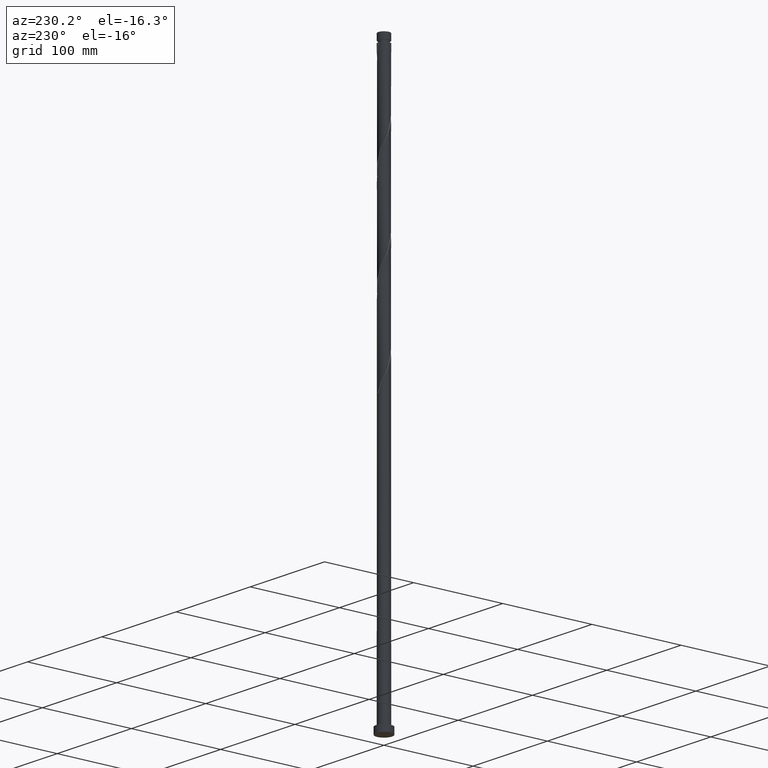
[diagram: clean part render]
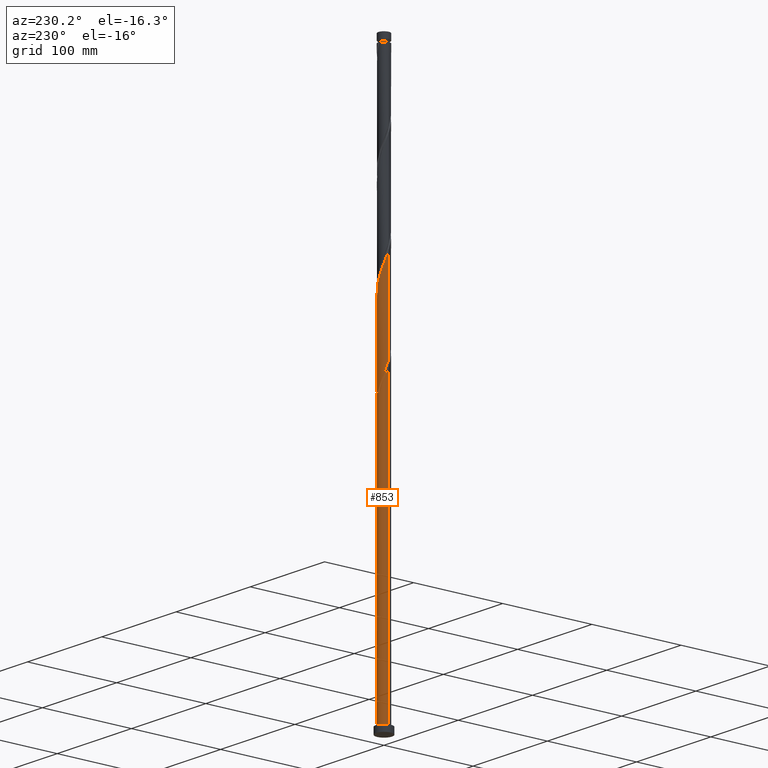
[diagram: same view with one face highlighted and labeled with its STEP entity id]
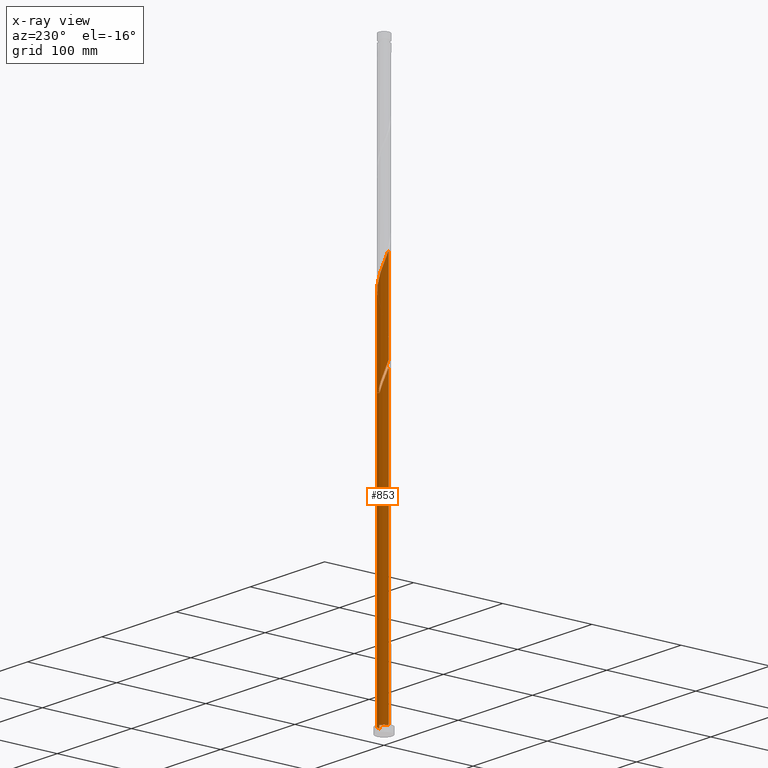
[diagram: x-ray of the same camera — body ghosted, the highlighted face saturated]
A machine part, auxiliary view. The second image highlights one B-rep face of the part: STEP entity #853.
The next image is the same camera in x-ray: the body ghosted, the highlighted face saturated — about 0% of this face is hidden behind the body in this view.
In plain terms, the highlighted cylindrical surface (edge-blend (fillet) strip) has radius 6.25 mm, axis along (-0, -0, -1).
Its self-contained STEP definition (entity closure, byte-faithful):
#15 = CARTESIAN_POINT ( 'NONE',  ( 4.138338151638126128, 4.683658542496076826, 395.3214129543825948 ) ) ;
#21 = CARTESIAN_POINT ( 'NONE',  ( 0.000000000000000000, 0.000000000000000000, 7.000000000000000000 ) ) ;
#23 = LINE ( 'NONE', #732, #69 ) ;
#56 = CARTESIAN_POINT ( 'NONE',  ( 2.166952786544130038, 5.862321692033692244, 401.4978835426180126 ) ) ;
#63 = DIRECTION ( 'NONE',  ( -0.000000000000000000, -0.000000000000000000, -1.000000000000000000 ) ) ;
#69 = VECTOR ( 'NONE', #1031, 1000.000000000000000 ) ;
#111 = ORIENTED_EDGE ( 'NONE', *, *, #513, .F. ) ;
#130 = CARTESIAN_POINT ( 'NONE',  ( -5.550818018030069467, 2.872441353746451487, 327.3802364837944197 ) ) ;
#155 = ORIENTED_EDGE ( 'NONE', *, *, #1668, .F. ) ;
#164 = CARTESIAN_POINT ( 'NONE',  ( -6.250000000000001776, 7.021209414020131870E-15, 335.3607981996649983 ) ) ;
#181 = CARTESIAN_POINT ( 'NONE',  ( 0.4819863434057365392, 6.258242670773383587, 406.1302364837944765 ) ) ;
#210 = CARTESIAN_POINT ( 'NONE',  ( -4.703723798979375204, 4.156067201626251872, 316.5714129543827084 ) ) ;
#225 = CARTESIAN_POINT ( 'NONE',  ( 0.000000000000000000, 0.000000000000000000, 630.0000000000000000 ) ) ;
#226 = CARTESIAN_POINT ( 'NONE',  ( -6.250000000000010658, -6.334027216052155665E-15, 433.6643806502768825 ) ) ;
#229 = CARTESIAN_POINT ( 'NONE',  ( -4.281841208703491830, 4.552838220654098933, 315.0272953073238682 ) ) ;
#246 = AXIS2_PLACEMENT_3D ( 'NONE', #225, #1399, #394 ) ;
#295 = CARTESIAN_POINT ( 'NONE',  ( -6.250000000000002665, 0.3376248979953905272, 334.4568789676522442 ) ) ;
#344 = CARTESIAN_POINT ( 'NONE',  ( 4.572343029938441994, 4.300185039982787671, 393.7772953073239250 ) ) ;
#345 = CARTESIAN_POINT ( 'NONE',  ( 3.704333273337804933, 5.067132045009369534, 396.8655306014416055 ) ) ;
#347 = AXIS2_PLACEMENT_3D ( 'NONE', #21, #1223, #2064 ) ;
#355 = CARTESIAN_POINT ( 'NONE',  ( -6.231546110836972296, 0.4799302746365645134, 432.3802364837944765 ) ) ;
#359 = EDGE_CURVE ( 'NONE', #1000, #1697, #773, .T. ) ;
#387 = CARTESIAN_POINT ( 'NONE',  ( -3.859958618427608457, 4.949609239681941553, 418.4831776602650280 ) ) ;
#394 = DIRECTION ( 'NONE',  ( -1.000000000000000000, 0.000000000000000000, 0.000000000000000000 ) ) ;
#458 = ORIENTED_EDGE ( 'NONE', *, *, #359, .F. ) ;
#464 = CARTESIAN_POINT ( 'NONE',  ( 6.151240105858516216, 1.249062577133805085, 384.5125894249708836 ) ) ;
#487 = DIRECTION ( 'NONE',  ( -0.000000000000000000, -0.000000000000000000, -1.000000000000000000 ) ) ;
#496 = CIRCLE ( 'NONE', #774, 6.250000000000000000 ) ;
#513 = EDGE_CURVE ( 'NONE', #2056, #1993, #1094, .T. ) ;
#529 = CARTESIAN_POINT ( 'NONE',  ( -5.887436458037868192, 2.176236226627279446, 322.7478835426180126 ) ) ;
#537 = CARTESIAN_POINT ( 'NONE',  ( -2.348023153125547768, 5.792174658311546764, 413.8508247190885072 ) ) ;
#547 = CARTESIAN_POINT ( 'NONE',  ( -2.884747176635378718, 5.574598271482226863, 415.3949423661472906 ) ) ;
#556 = CARTESIAN_POINT ( 'NONE',  ( 5.550818018030080125, 2.872441353746455039, 389.1449423661474043 ) ) ;
#567 = CARTESIAN_POINT ( 'NONE',  ( -2.884747176635378718, 5.574598271482226863, 310.3949423661473475 ) ) ;
#605 = LINE ( 'NONE', #1111, #1694 ) ;
#653 = CARTESIAN_POINT ( 'NONE',  ( -5.984114506671556200, 1.803572446851816613, 330.4684717779120433 ) ) ;
#654 = ORIENTED_EDGE ( 'NONE', *, *, #870, .T. ) ;
#665 = CARTESIAN_POINT ( 'NONE',  ( -2.166952786544121601, 5.862321692033684251, 315.0272953073236977 ) ) ;
#671 = EDGE_CURVE ( 'NONE', #2056, #1867, #496, .T. ) ;
#689 = CARTESIAN_POINT ( 'NONE',  ( -5.045516553015578332, 3.688531240649310039, 423.1155306014416055 ) ) ;
#705 = CARTESIAN_POINT ( 'NONE',  ( -5.387309307051779683, 3.220995279672369094, 319.6596482485003321 ) ) ;
#714 = CARTESIAN_POINT ( 'NONE',  ( -5.887436458037868192, 2.176236226627279446, 427.7478835426178421 ) ) ;
#732 = CARTESIAN_POINT ( 'NONE',  ( 6.250000000000000000, 7.654042494670957606E-16, 630.0000000000000000 ) ) ;
#769 = CARTESIAN_POINT ( 'NONE',  ( 5.284647128575540087, 3.386800390923078830, 390.6890600132062445 ) ) ;
#773 =( BOUNDED_CURVE ( )  B_SPLINE_CURVE ( 2, ( #891, #1849, #2184, #464, #2014, #1483, #556, #769, #1446, #344, #15, #345, #1216, #1558, #56, #1913, #1734, #181, #1525, #1901, #1185, #1726, #537, #547, #1549, #387, #1051, #1358, #689, #849, #1042, #714, #1868, #1197, #355, #1060, #226 ),
 .UNSPECIFIED., .F., .T. ) 
 B_SPLINE_CURVE_WITH_KNOTS ( ( 3, 2, 2, 2, 2, 2, 2, 2, 2, 2, 2, 2, 2, 2, 2, 2, 2, 2, 3 ),
 ( 0.1795293573162903555, 0.1838235294117647189, 0.1911764705882352811, 0.1985294117647058432, 0.2058823529411765163, 0.2132352941176470784, 0.2205882352941176405, 0.2279411764705882026, 0.2352941176470588758, 0.2426470588235294379, 0.2500000000000000000, 0.2573529411764705621, 0.2647058823529411242, 0.2720588235294117974, 0.2794117647058823595, 0.2867647058823529216, 0.2941176470588234837, 0.3014705882352941568, 0.3045293573162906053 ),
 .UNSPECIFIED. ) 
 CURVE ( )  GEOMETRIC_REPRESENTATION_ITEM ( )  RATIONAL_B_SPLINE_CURVE ( ( 0.9072066346053186958, 0.9068261157890857849, 0.9090909090909571333, 0.9052128875409882758, 0.9090909090909571333, 0.9052128875409882758, 0.9090909090909571333, 0.9052128875409882758, 0.9090909090909571333, 0.9052128875409882758, 0.9090909090909571333, 0.9052128875409882758, 0.9090909090909571333, 0.9052128875409882758, 0.9090909090909571333, 0.9052128875409882758, 0.9090909090909571333, 0.9052128875409882758, 0.9090909090909571333, 0.9052128875409882758, 0.9090909090909571333, 0.9052128875409882758, 0.9090909090909571333, 0.9052128875409882758, 0.9090909090909571333, 0.9052128875409882758, 0.9090909090909571333, 0.9052128875409882758, 0.9090909090909571333, 0.9052128875409882758, 0.9090909090909571333, 0.9052128875409882758, 0.9090909090909571333, 0.9052128875409882758, 0.9090909090909571333, 0.9074776808428595132, 0.9072066346053186958 ) ) 
 REPRESENTATION_ITEM ( '' )  );
#774 = AXIS2_PLACEMENT_3D ( 'NONE', #1272, #1777, #779 ) ;
#779 = DIRECTION ( 'NONE',  ( -1.000000000000000000, 0.000000000000000000, 0.000000000000000000 ) ) ;
#797 = CARTESIAN_POINT ( 'NONE',  ( -4.928495079256983935, 3.843492715452928365, 324.2920011896768528 ) ) ;
#801 = CIRCLE ( 'NONE', #347, 6.250000000000000000 ) ;
#833 = CARTESIAN_POINT ( 'NONE',  ( -2.710176889971708913, 5.661523945598179175, 316.5714129543826516 ) ) ;
#849 = CARTESIAN_POINT ( 'NONE',  ( -5.387309307051779683, 3.220995279672369094, 424.6596482485003889 ) ) ;
#853 = ADVANCED_FACE ( 'NONE', ( #2045 ), #2067, .T. ) ;
#870 = EDGE_CURVE ( 'NONE', #1000, #1131, #23, .T. ) ;
#876 = CARTESIAN_POINT ( 'NONE',  ( -6.037255239842539645, 1.616802142809668830, 324.2920011896768528 ) ) ;
#891 = CARTESIAN_POINT ( 'NONE',  ( 6.250000000000011546, 6.662679571602031845E-15, 381.1643806502768825 ) ) ;
#898 = ORIENTED_EDGE ( 'NONE', *, *, #671, .T. ) ;
#926 = CARTESIAN_POINT ( 'NONE',  ( -6.231546110836972296, 0.4799302746365645134, 327.3802364837944765 ) ) ;
#962 = CARTESIAN_POINT ( 'NONE',  ( -1.623728683116535620, 6.063119438469188438, 313.4831776602650848 ) ) ;
#987 = ORIENTED_EDGE ( 'NONE', *, *, #1322, .F. ) ;
#996 = CARTESIAN_POINT ( 'NONE',  ( -5.816988907484607729, 2.358082316569827697, 328.9243541308532599 ) ) ;
#1000 = VERTEX_POINT ( 'NONE', #1205 ) ;
#1031 = DIRECTION ( 'NONE',  ( -0.000000000000000000, -0.000000000000000000, -1.000000000000000000 ) ) ;
#1042 = CARTESIAN_POINT ( 'NONE',  ( -5.637372882544824826, 2.698615753149824048, 426.2037658955591155 ) ) ;
#1051 = CARTESIAN_POINT ( 'NONE',  ( -4.281841208703491830, 4.552838220654098933, 420.0272953073239250 ) ) ;
#1053 = CARTESIAN_POINT ( 'NONE',  ( -2.348023153125547768, 5.792174658311546764, 308.8508247190885641 ) ) ;
#1060 = CARTESIAN_POINT ( 'NONE',  ( -6.250000000000010658, 0.2403199242980035288, 433.0209748982171050 ) ) ;
#1073 = CARTESIAN_POINT ( 'NONE',  ( -5.637372882544824826, 2.698615753149824048, 321.2037658955591723 ) ) ;
#1094 =( BOUNDED_CURVE ( )  B_SPLINE_CURVE ( 2, ( #1570, #2071, #1053, #567, #1736, #1239, #229, #210, #1925, #705, #1073, #529, #876, #1552, #926, #2143, #1249 ),
 .UNSPECIFIED., .F., .T. ) 
 B_SPLINE_CURVE_WITH_KNOTS ( ( 3, 2, 2, 2, 2, 2, 2, 2, 3 ),
 ( 0.000000000000000000, 0.007352941176470562112, 0.01470588235294112422, 0.02205882352941179736, 0.02941176470588235947, 0.03676470588235292158, 0.04411764705882348370, 0.05147058823529415683, 0.05452935731629061922 ),
 .UNSPECIFIED. ) 
 CURVE ( )  GEOMETRIC_REPRESENTATION_ITEM ( )  RATIONAL_B_SPLINE_CURVE ( ( 0.9090909090909571333, 0.9052128875409882758, 0.9090909090909571333, 0.9052128875409882758, 0.9090909090909571333, 0.9052128875409882758, 0.9090909090909571333, 0.9052128875409882758, 0.9090909090909571333, 0.9052128875409882758, 0.9090909090909571333, 0.9052128875409882758, 0.9090909090909571333, 0.9052128875409882758, 0.9090909090909571333, 0.9074776808428595132, 0.9072066346053189179 ) ) 
 REPRESENTATION_ITEM ( '' )  );
#1111 = CARTESIAN_POINT ( 'NONE',  ( -6.250000000000000000, 0.000000000000000000, 630.0000000000000000 ) ) ;
#1113 = CARTESIAN_POINT ( 'NONE',  ( 6.250000000000000000, 7.654042494670957606E-16, 7.000000000000000000 ) ) ;
#1122 = CARTESIAN_POINT ( 'NONE',  ( -6.250000000000010658, -6.334027216052155665E-15, 328.6643806502768825 ) ) ;
#1124 = CARTESIAN_POINT ( 'NONE',  ( -6.151240105858505558, 1.249062577133805529, 332.0125894249709404 ) ) ;
#1131 = VERTEX_POINT ( 'NONE', #1113 ) ;
#1162 = CARTESIAN_POINT ( 'NONE',  ( 1.243734296383283811, 6.124999999999999112, 305.7625894249708836 ) ) ;
#1173 = CARTESIAN_POINT ( 'NONE',  ( 0.6761694631508501363, 6.240248954859140440, 307.3067070720297806 ) ) ;
#1185 = CARTESIAN_POINT ( 'NONE',  ( -1.243734296383281812, 6.125000000000010658, 410.7625894249709404 ) ) ;
#1197 = CARTESIAN_POINT ( 'NONE',  ( -6.187074021647211985, 1.057368058992059101, 430.8361188367355226 ) ) ;
#1205 = CARTESIAN_POINT ( 'NONE',  ( 6.250000000000011546, 6.662679571602031845E-15, 381.1643806502768825 ) ) ;
#1216 = CARTESIAN_POINT ( 'NONE',  ( 3.207255081654760254, 5.364327995303778351, 398.4096482485002753 ) ) ;
#1223 = DIRECTION ( 'NONE',  ( 0.000000000000000000, 0.000000000000000000, 1.000000000000000000 ) ) ;
#1239 = CARTESIAN_POINT ( 'NONE',  ( -3.859958618427608457, 4.949609239681941553, 313.4831776602651416 ) ) ;
#1249 = CARTESIAN_POINT ( 'NONE',  ( -6.250000000000010658, -6.334027216052155665E-15, 328.6643806502768825 ) ) ;
#1256 = CARTESIAN_POINT ( 'NONE',  ( 1.243734296383283811, 6.124999999999999112, 305.7625894249708836 ) ) ;
#1272 = CARTESIAN_POINT ( 'NONE',  ( 0.000000000000000000, 0.000000000000000000, 305.7625894249709404 ) ) ;
#1305 = CARTESIAN_POINT ( 'NONE',  ( -0.4819863434057327645, 6.258242670773373817, 310.3949423661474043 ) ) ;
#1309 =( BOUNDED_CURVE ( )  B_SPLINE_CURVE ( 2, ( #164, #295, #1814, #1124, #653, #996, #130, #1487, #797, #1803, #2189, #1473, #2005, #833, #665, #962, #1500, #1305, #1667, #1173, #1162 ),
 .UNSPECIFIED., .F., .T. ) 
 B_SPLINE_CURVE_WITH_KNOTS ( ( 3, 2, 2, 2, 2, 2, 2, 2, 2, 2, 3 ),
 ( 0.9295293573162902723, 0.9338235294117647189, 0.9411764705882352811, 0.9485294117647058432, 0.9558823529411765163, 0.9632352941176470784, 0.9705882352941176405, 0.9779411764705882026, 0.9852941176470588758, 0.9926470588235294379, 1.000000000000000000 ),
 .UNSPECIFIED. ) 
 CURVE ( )  GEOMETRIC_REPRESENTATION_ITEM ( )  RATIONAL_B_SPLINE_CURVE ( ( 0.9072066346053119235, 0.9068261157890789015, 0.9090909090909502499, 0.9052128875409815034, 0.9090909090909502499, 0.9052128875409815034, 0.9090909090909502499, 0.9052128875409815034, 0.9090909090909502499, 0.9052128875409815034, 0.9090909090909502499, 0.9052128875409815034, 0.9090909090909502499, 0.9052128875409815034, 0.9090909090909502499, 0.9052128875409815034, 0.9090909090909502499, 0.9052128875409815034, 0.9090909090909502499, 0.9052128875409815034, 0.9090909090909502499 ) ) 
 REPRESENTATION_ITEM ( '' )  );
#1322 = EDGE_CURVE ( 'NONE', #1678, #1867, #1309, .T. ) ;
#1348 = EDGE_LOOP ( 'NONE', ( #458, #654, #2140, #155, #111, #898, #987, #2065 ) ) ;
#1358 = CARTESIAN_POINT ( 'NONE',  ( -4.703723798979375204, 4.156067201626251872, 421.5714129543825948 ) ) ;
#1399 = DIRECTION ( 'NONE',  ( -0.000000000000000000, -0.000000000000000000, -1.000000000000000000 ) ) ;
#1438 = CARTESIAN_POINT ( 'NONE',  ( -6.250000000000001776, 7.021209414020131870E-15, 335.3607981996649983 ) ) ;
#1446 = CARTESIAN_POINT ( 'NONE',  ( 4.928495079256989264, 3.843492715452935027, 392.2331776602650280 ) ) ;
#1473 = CARTESIAN_POINT ( 'NONE',  ( -3.704333273337800492, 5.067132045009359764, 319.6596482485003321 ) ) ;
#1483 = CARTESIAN_POINT ( 'NONE',  ( 5.816988907484617499, 2.358082316569833026, 387.6008247190885072 ) ) ;
#1487 = CARTESIAN_POINT ( 'NONE',  ( -5.284647128575529429, 3.386800390923074389, 325.8361188367356363 ) ) ;
#1500 = CARTESIAN_POINT ( 'NONE',  ( -1.052857513261133970, 6.160681054621281127, 311.9390600132061309 ) ) ;
#1525 = CARTESIAN_POINT ( 'NONE',  ( -0.09709155987255929654, 6.249245812816266898, 407.6743541308532031 ) ) ;
#1549 = CARTESIAN_POINT ( 'NONE',  ( -3.372352897531493365, 5.262103755582086428, 416.9390600132061877 ) ) ;
#1552 = CARTESIAN_POINT ( 'NONE',  ( -6.187074021647211985, 1.057368058992059101, 325.8361188367355794 ) ) ;
#1558 = CARTESIAN_POINT ( 'NONE',  ( 2.710176889971715131, 5.661523945598186280, 399.9537658955591155 ) ) ;
#1560 = EDGE_CURVE ( 'NONE', #1131, #1898, #801, .T. ) ;
#1570 = CARTESIAN_POINT ( 'NONE',  ( -1.243734296383281812, 6.125000000000010658, 305.7625894249708836 ) ) ;
#1630 = LINE ( 'NONE', #1811, #1696 ) ;
#1667 = CARTESIAN_POINT ( 'NONE',  ( 0.09709155987255846387, 6.249245812816258017, 308.8508247190885072 ) ) ;
#1668 = EDGE_CURVE ( 'NONE', #1993, #1898, #605, .T. ) ;
#1678 = VERTEX_POINT ( 'NONE', #1438 ) ;
#1694 = VECTOR ( 'NONE', #63, 1000.000000000000000 ) ;
#1696 = VECTOR ( 'NONE', #487, 1000.000000000000000 ) ;
#1697 = VERTEX_POINT ( 'NONE', #1781 ) ;
#1726 = CARTESIAN_POINT ( 'NONE',  ( -1.811299129615716375, 6.009751045140867554, 412.3067070720297238 ) ) ;
#1734 = CARTESIAN_POINT ( 'NONE',  ( 1.052857513261137301, 6.160681054621292674, 404.5861188367356363 ) ) ;
#1736 = CARTESIAN_POINT ( 'NONE',  ( -3.372352897531493365, 5.262103755582086428, 311.9390600132061877 ) ) ;
#1777 = DIRECTION ( 'NONE',  ( 0.000000000000000000, -0.000000000000000000, -1.000000000000000000 ) ) ;
#1781 = CARTESIAN_POINT ( 'NONE',  ( -6.250000000000010658, -6.334027216052155665E-15, 433.6643806502768825 ) ) ;
#1803 = CARTESIAN_POINT ( 'NONE',  ( -4.572343029938433112, 4.300185039982783231, 322.7478835426179558 ) ) ;
#1811 = CARTESIAN_POINT ( 'NONE',  ( -6.250000000000000000, 0.000000000000000000, 630.0000000000000000 ) ) ;
#1814 = CARTESIAN_POINT ( 'NONE',  ( -6.213629152942616862, 0.6732850434263681905, 333.5567070720297806 ) ) ;
#1844 = CARTESIAN_POINT ( 'NONE',  ( -1.243734296383282034, 6.125000000000010658, 305.7625894249708836 ) ) ;
#1849 = CARTESIAN_POINT ( 'NONE',  ( 6.250000000000013323, 0.3376248979953981322, 382.0682998822895797 ) ) ;
#1867 = VERTEX_POINT ( 'NONE', #1256 ) ;
#1868 = CARTESIAN_POINT ( 'NONE',  ( -6.037255239842539645, 1.616802142809668830, 429.2920011896767960 ) ) ;
#1898 = VERTEX_POINT ( 'NONE', #2129 ) ;
#1901 = CARTESIAN_POINT ( 'NONE',  ( -0.6761694631508505804, 6.240248954859151098, 409.2184717779119296 ) ) ;
#1913 = CARTESIAN_POINT ( 'NONE',  ( 1.623728683116538951, 6.063119438469199984, 403.0420011896767960 ) ) ;
#1925 = CARTESIAN_POINT ( 'NONE',  ( -5.045516553015578332, 3.688531240649310039, 318.1155306014414919 ) ) ;
#1993 = VERTEX_POINT ( 'NONE', #1122 ) ;
#2005 = CARTESIAN_POINT ( 'NONE',  ( -3.207255081654753592, 5.364327995303769470, 318.1155306014414919 ) ) ;
#2014 = CARTESIAN_POINT ( 'NONE',  ( 5.984114506671566858, 1.803572446851816169, 386.0567070720297806 ) ) ;
#2045 = FACE_OUTER_BOUND ( 'NONE', #1348, .T. ) ;
#2056 = VERTEX_POINT ( 'NONE', #1844 ) ;
#2064 = DIRECTION ( 'NONE',  ( 1.000000000000000000, 0.000000000000000000, 0.000000000000000000 ) ) ;
#2065 = ORIENTED_EDGE ( 'NONE', *, *, #2182, .F. ) ;
#2067 = CYLINDRICAL_SURFACE ( 'NONE', #246, 6.250000000000000000 ) ;
#2071 = CARTESIAN_POINT ( 'NONE',  ( -1.811299129615716375, 6.009751045140867554, 307.3067070720297238 ) ) ;
#2129 = CARTESIAN_POINT ( 'NONE',  ( -6.250000000000000000, 0.000000000000000000, 7.000000000000000000 ) ) ;
#2140 = ORIENTED_EDGE ( 'NONE', *, *, #1560, .T. ) ;
#2143 = CARTESIAN_POINT ( 'NONE',  ( -6.250000000000010658, 0.2403199242980024186, 328.0209748982171618 ) ) ;
#2182 = EDGE_CURVE ( 'NONE', #1697, #1678, #1630, .T. ) ;
#2184 = CARTESIAN_POINT ( 'NONE',  ( 6.213629152942627520, 0.6732850434263684125, 382.9684717779121002 ) ) ;
#2189 = CARTESIAN_POINT ( 'NONE',  ( -4.138338151638117246, 4.683658542496072386, 321.2037658955592292 ) ) ;